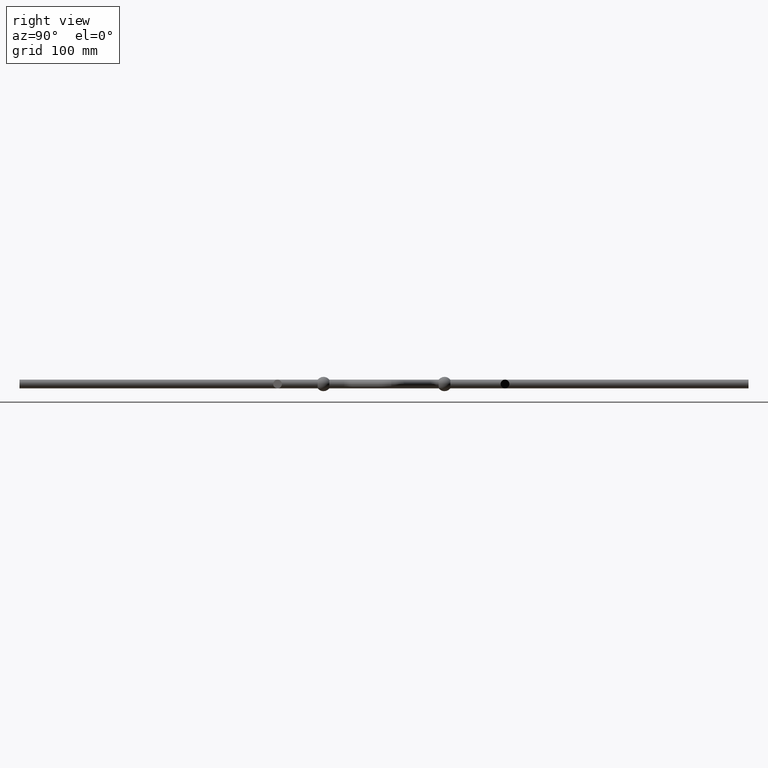
[diagram: clean part render]
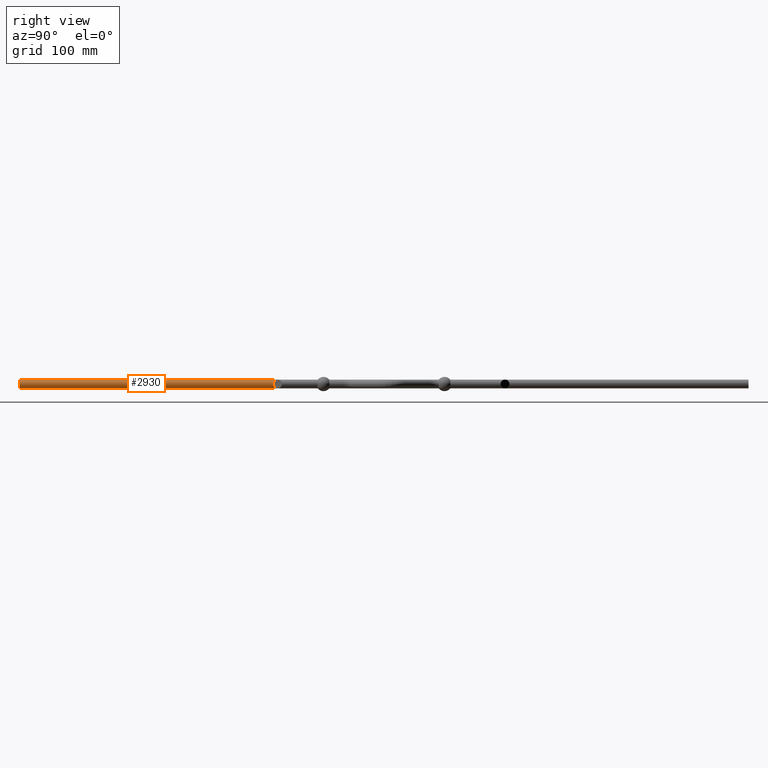
[diagram: same view with one face highlighted and labeled with its STEP entity id]
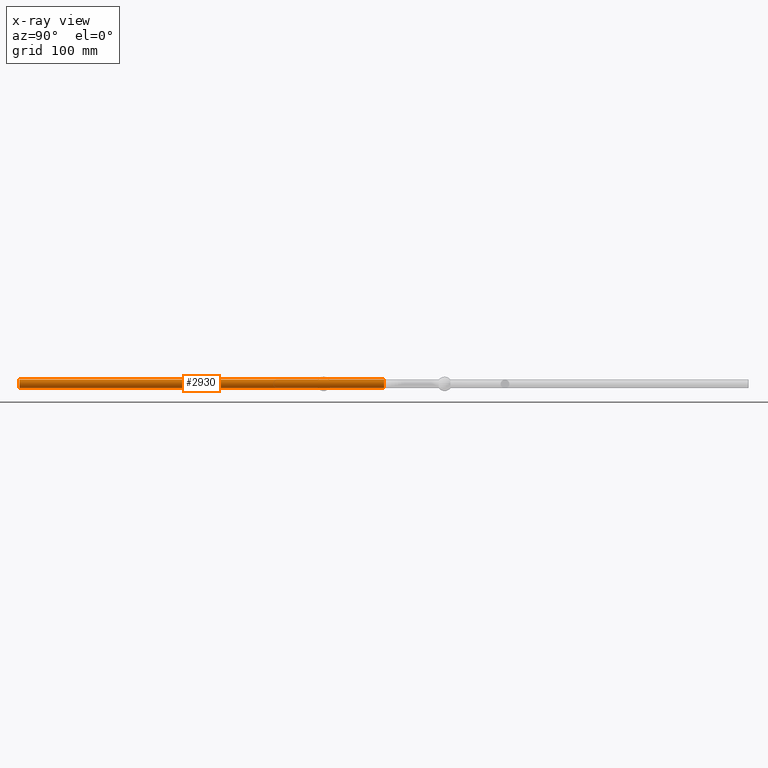
[diagram: x-ray of the same camera — body ghosted, the highlighted face saturated]
A machine part, right view. The second image highlights one B-rep face of the part: STEP entity #2930.
The next image is the same camera in x-ray: the body ghosted, the highlighted face saturated — about 0% of this face is hidden behind the body in this view.
In plain terms, the highlighted cylindrical surface (edge-blend (fillet) strip) has radius 6 mm, axis along (-0, -1, -0).
Its self-contained STEP definition (entity closure, byte-faithful):
#217 = FACE_OUTER_BOUND ( 'NONE', #2999, .T. ) ;
#354 = DIRECTION ( 'NONE',  ( -0.0000000000000000000, -1.000000000000000000, -0.0000000000000000000 ) ) ;
#1245 = CARTESIAN_POINT ( 'NONE',  ( -6.000000000000000000, 500.0000000000000000, -6.000000000000000000 ) ) ;
#1404 = ORIENTED_EDGE ( 'NONE', *, *, #10439, .F. ) ;
#1693 = ORIENTED_EDGE ( 'NONE', *, *, #6672, .T. ) ;
#2356 = VERTEX_POINT ( 'NONE', #1245 ) ;
#2405 = CARTESIAN_POINT ( 'NONE',  ( -6.000000000000000000, 500.0000000000000000, 0.0000000000000000000 ) ) ;
#2428 = DIRECTION ( 'NONE',  ( -0.0000000000000000000, -1.000000000000000000, -0.0000000000000000000 ) ) ;
#2477 = CIRCLE ( 'NONE', #8049, 6.000000000000000000 ) ;
#2616 = CYLINDRICAL_SURFACE ( 'NONE', #4004, 6.000000000000000000 ) ;
#2794 = DIRECTION ( 'NONE',  ( -0.0000000000000000000, -1.000000000000000000, -0.0000000000000000000 ) ) ;
#2840 = CARTESIAN_POINT ( 'NONE',  ( -6.000000000000000000, 0.0000000000000000000, -6.000000000000000000 ) ) ;
#2911 = VERTEX_POINT ( 'NONE', #6559 ) ;
#2930 = ADVANCED_FACE ( 'NONE', ( #217 ), #2616, .T. ) ;
#2934 = LINE ( 'NONE', #2840, #10445 ) ;
#2999 = EDGE_LOOP ( 'NONE', ( #8764, #1693, #1404, #9629 ) ) ;
#3974 = CARTESIAN_POINT ( 'NONE',  ( -5.999999999999999100, 500.0000000000000000, 6.000000000000000000 ) ) ;
#4004 = AXIS2_PLACEMENT_3D ( 'NONE', #8570, #2428, #4315 ) ;
#4315 = DIRECTION ( 'NONE',  ( 0.0000000000000000000, 0.0000000000000000000, -1.000000000000000000 ) ) ;
#4722 = CIRCLE ( 'NONE', #11995, 6.000000000000000000 ) ;
#4974 = CARTESIAN_POINT ( 'NONE',  ( -5.999999999999999100, 0.0000000000000000000, 6.000000000000000000 ) ) ;
#5187 = EDGE_CURVE ( 'NONE', #2356, #12991, #2477, .T. ) ;
#6559 = CARTESIAN_POINT ( 'NONE',  ( -5.999999999999999100, 0.0000000000000000000, 6.000000000000000000 ) ) ;
#6672 = EDGE_CURVE ( 'NONE', #12991, #2911, #11765, .T. ) ;
#6741 = DIRECTION ( 'NONE',  ( 0.0000000000000000000, 0.0000000000000000000, -1.000000000000000000 ) ) ;
#6795 = CARTESIAN_POINT ( 'NONE',  ( -6.000000000000000000, 0.0000000000000000000, 0.0000000000000000000 ) ) ;
#8049 = AXIS2_PLACEMENT_3D ( 'NONE', #2405, #354, #11737 ) ;
#8570 = CARTESIAN_POINT ( 'NONE',  ( -6.000000000000000000, 0.0000000000000000000, 0.0000000000000000000 ) ) ;
#8764 = ORIENTED_EDGE ( 'NONE', *, *, #5187, .T. ) ;
#9131 = CARTESIAN_POINT ( 'NONE',  ( -6.000000000000000000, 0.0000000000000000000, -6.000000000000000000 ) ) ;
#9193 = EDGE_CURVE ( 'NONE', #2356, #11880, #2934, .T. ) ;
#9629 = ORIENTED_EDGE ( 'NONE', *, *, #9193, .F. ) ;
#9864 = VECTOR ( 'NONE', #10071, 1000.000000000000000 ) ;
#10071 = DIRECTION ( 'NONE',  ( -0.0000000000000000000, -1.000000000000000000, -0.0000000000000000000 ) ) ;
#10439 = EDGE_CURVE ( 'NONE', #11880, #2911, #4722, .T. ) ;
#10445 = VECTOR ( 'NONE', #2794, 1000.000000000000000 ) ;
#11737 = DIRECTION ( 'NONE',  ( 0.0000000000000000000, 0.0000000000000000000, -1.000000000000000000 ) ) ;
#11765 = LINE ( 'NONE', #4974, #9864 ) ;
#11880 = VERTEX_POINT ( 'NONE', #9131 ) ;
#11995 = AXIS2_PLACEMENT_3D ( 'NONE', #6795, #12928, #6741 ) ;
#12928 = DIRECTION ( 'NONE',  ( -0.0000000000000000000, -1.000000000000000000, -0.0000000000000000000 ) ) ;
#12991 = VERTEX_POINT ( 'NONE', #3974 ) ;